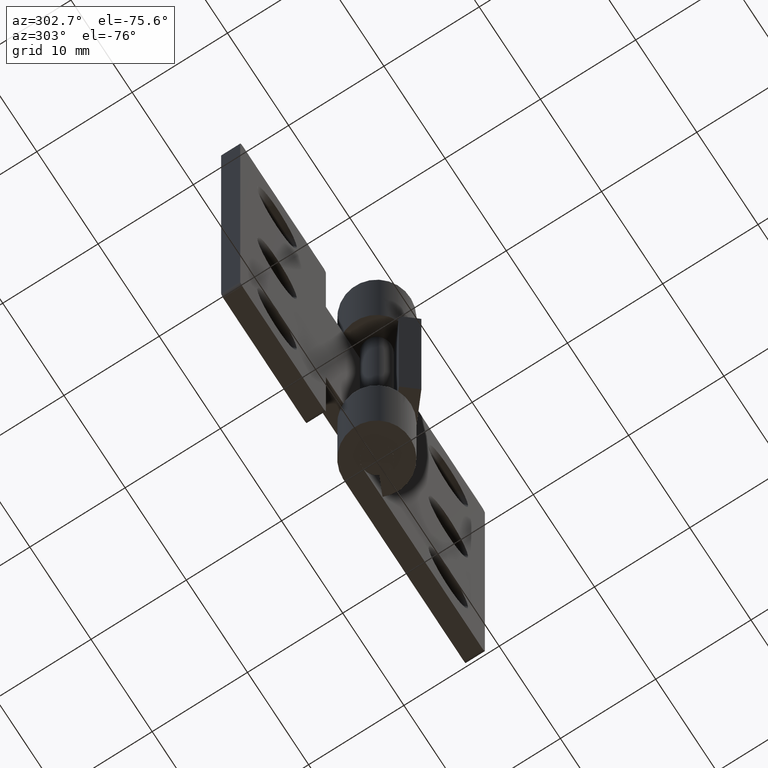
[diagram: clean part render]
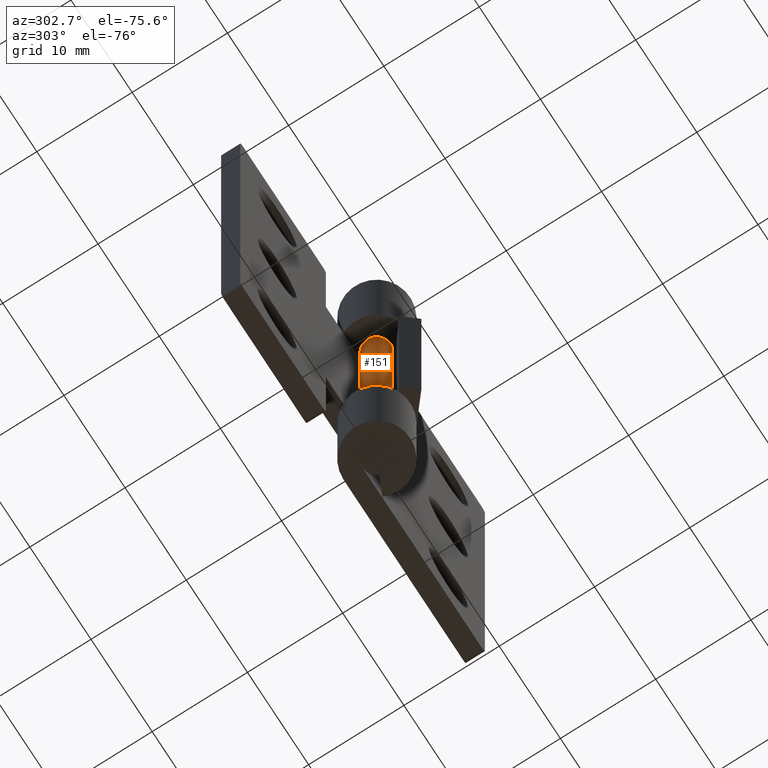
[diagram: same view with one face highlighted and labeled with its STEP entity id]
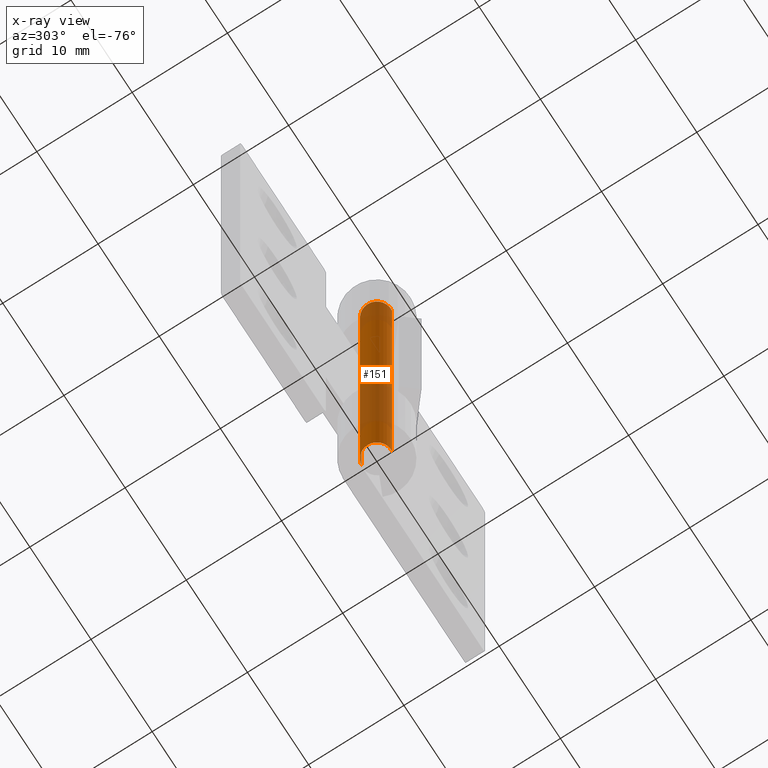
[diagram: x-ray of the same camera — body ghosted, the highlighted face saturated]
A machine part, auxiliary view. The second image highlights one B-rep face of the part: STEP entity #151.
The next image is the same camera in x-ray: the body ghosted, the highlighted face saturated — about 40% of this face is hidden behind the body in this view.
In plain terms, the highlighted cylindrical surface (edge-blend (fillet) strip) has radius 1.5 mm, axis along (-0, -0, 1).
Its self-contained STEP definition (entity closure, byte-faithful):
#151=ADVANCED_FACE('',(#232),#231,.T.);
#231=CYLINDRICAL_SURFACE('',#856,1.49999999999E+00);
#232=FACE_OUTER_BOUND('',#857,.T.);
#853=CARTESIAN_POINT('',(-7.82899069628E-12,-8.68328210996E-13,5.12500000000E+01));
#854=DIRECTION('',(-2.98084636263E-13,-3.30467284020E-14,1.00000000000E+00));
#855=DIRECTION('',(-1.18034234662E-01,9.93009526363E-01,-2.36847578744E-15));
#856=AXIS2_PLACEMENT_3D('',#853,#854,#855);
#857=EDGE_LOOP('',(#1291,#1292,#1293,#1294));
#1291=ORIENTED_EDGE('',*,*,#1674,.T.);
#1292=ORIENTED_EDGE('',*,*,#1679,.F.);
#1293=ORIENTED_EDGE('',*,*,#1677,.F.);
#1294=ORIENTED_EDGE('',*,*,#1680,.T.);
#1674=EDGE_CURVE('',#1875,#1867,#1876,.T.);
#1677=EDGE_CURVE('',#1889,#1896,#1897,.T.);
#1679=EDGE_CURVE('',#1896,#1867,#1909,.T.);
#1680=EDGE_CURVE('',#1889,#1875,#1915,.T.);
#1867=VERTEX_POINT('',#3169);
#1875=VERTEX_POINT('',#3175);
#1876=CIRCLE('',#3179,1.50000000000E+00);
#1889=VERTEX_POINT('',#3185);
#1896=VERTEX_POINT('',#3190);
#1897=CIRCLE('',#3194,1.50000000000E+00);
#1909=(BOUNDED_CURVE() B_SPLINE_CURVE(1,(#3199,#3200),.UNSPECIFIED.,.F.,.F.) B_SPLINE_CURVE_WITH_KNOTS((2,2),(8.33333335810E-02,9.16666666255E-01),.UNSPECIFIED.) CURVE() GEOMETRIC_REPRESENTATION_ITEM() RATIONAL_B_SPLINE_CURVE((1.00000000000E+00,1.00000000000E+00)) REPRESENTATION_ITEM('') );
#1915=(BOUNDED_CURVE() B_SPLINE_CURVE(1,(#3201,#3202),.UNSPECIFIED.,.F.,.F.) B_SPLINE_CURVE_WITH_KNOTS((2,2),(8.33333333333E-02,9.16666666667E-01),.UNSPECIFIED.) CURVE() GEOMETRIC_REPRESENTATION_ITEM() RATIONAL_B_SPLINE_CURVE((7.50000000000E-01,7.50000000000E-01)) REPRESENTATION_ITEM('') );
#3169=CARTESIAN_POINT('',(-1.77050807294E-01,1.48951435429E+00,5.00000000000E+01));
#3175=CARTESIAN_POINT('',(1.77308791980E-01,-1.48948366634E+00,5.00000000000E+01));
#3176=CARTESIAN_POINT('',(-4.44089209850E-16,-3.33066907388E-16,5.00000000000E+01));
#3177=DIRECTION('',(-3.82503314405E-14,-4.54663170888E-15,-1.00000000000E+00));
#3178=DIRECTION('',(1.00000000000E+00,3.74700270811E-16,-3.82503314405E-14));
#3179=AXIS2_PLACEMENT_3D('',#3176,#3177,#3178);
#3185=CARTESIAN_POINT('',(1.77308791995E-01,-1.48948366634E+00,1.13908558315E-16));
#3190=CARTESIAN_POINT('',(-1.77050807279E-01,1.48951435429E+00,2.27106525706E-16));
#3191=CARTESIAN_POINT('',(-4.44089209850E-16,-3.33066907388E-16,1.70341462127E-16));
#3192=DIRECTION('',(1.26509641858E-15,1.88485196510E-16,-1.00000000000E+00));
#3193=DIRECTION('',(1.00000000000E+00,3.74700270811E-16,1.26509641858E-15));
#3194=AXIS2_PLACEMENT_3D('',#3191,#3192,#3193);
#3199=CARTESIAN_POINT('',(-1.77051351985E-01,1.48951428954E+00,1.48606220662E-08));
#3200=CARTESIAN_POINT('',(-1.77051351999E-01,1.48951428954E+00,4.99999999753E+01));
#3201=CARTESIAN_POINT('',(1.77051351999E-01,-1.48951428954E+00,1.30266168223E-14));
#3202=CARTESIAN_POINT('',(1.77051351985E-01,-1.48951428954E+00,5.00000000000E+01));